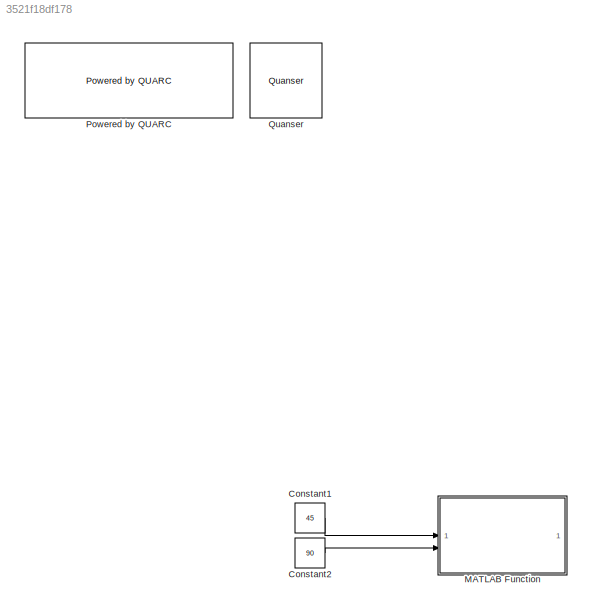
MODEL slx_3521f18df178
KIND model
CONFIG AbsTol = auto
CONFIG EnableMultiTasking = on
CONFIG FixedStep = 0.002
CONFIG MaxStep = auto
CONFIG MinStep = auto
CONFIG RelTol = 1e-3
CONFIG SampleTimeConstraint = Unconstrained
CONFIG SolverName = ode3
CONFIG StartTime = 0.0
CONFIG StopTime = inf
BLOCK [Constant] Constant1
  Value = 45
BLOCK [Constant] Constant2
  Value = 90
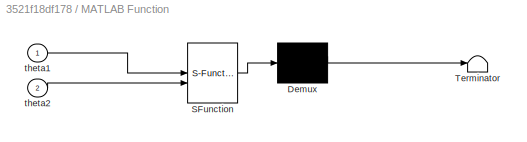
BLOCK [SubSystem] MATLAB Function
  ErrorFcn = Stateflow.Translate.translate
  PermitHierarchicalResolution = ExplicitOnly
  SFBlockType = MATLAB Function
  TreatAsAtomicUnit = on
BLOCK [Demux] MATLAB Function/ Demux 
  Outputs = 1
BLOCK [S-Function] MATLAB Function/ SFunction 
  EnableBusSupport = on
  FunctionName = sf_sfun
  PortCounts = [2 1]
  SFcnIsStateOwnerBlock = off
  SFunctionDeploymentMode = off
  Tag = Stateflow S-Function 2
BLOCK [Terminator] MATLAB Function/ Terminator 
BLOCK [Inport] MATLAB Function/theta1
BLOCK [Inport] MATLAB Function/theta2
  Port = 2
BLOCK [Reference] Powered by QUARC  REF=quarc_library/Logos/Powered by QUARC
  SourceBlock = quarc_library/Logos/Powered by QUARC
  SourceProductName = QUARC Targets
  SourceType = Powered by QUARC
BLOCK [Reference] Quanser  REF=quarc_library/Logos/Quanser
  SourceBlock = quarc_library/Logos/Quanser
  SourceProductName = QUARC Targets
  SourceType = Powered by Quanser
LINE Constant1:1 -> MATLAB Function:1
LINE Constant2:1 -> MATLAB Function:2
CHART MATLAB Function states=1 transitions=1
  STATE_LABEL 'eML_blk_kernel()'
  STATE_LABEL "SCRIPT:\nfunction fcn(theta1, theta2)\n    BaseDesX = [0, 0];\n    BaseDesY = [0, 0];\n    BaseDesZ = [-5, 0];\n    plot3(BaseDesX,BaseDesY,BaseDesZ,'rs-', 'LineWidth', 2, 'MarkerSize', 8);     \n    hold on\n    grid on\n    axis([-20 20 -20 20 -5 15])\n    points1 = [0 0 0 1; 0 0 -1 1; 0 6 -1 1; 0 6 0 1; 0 8 0 1]';\n    [transformedLink1, transformedMatrix1] = TRANS0_1(theta1, points1);\n    link2points = ...<+263ch>"
CHART  states=0 transitions=0
